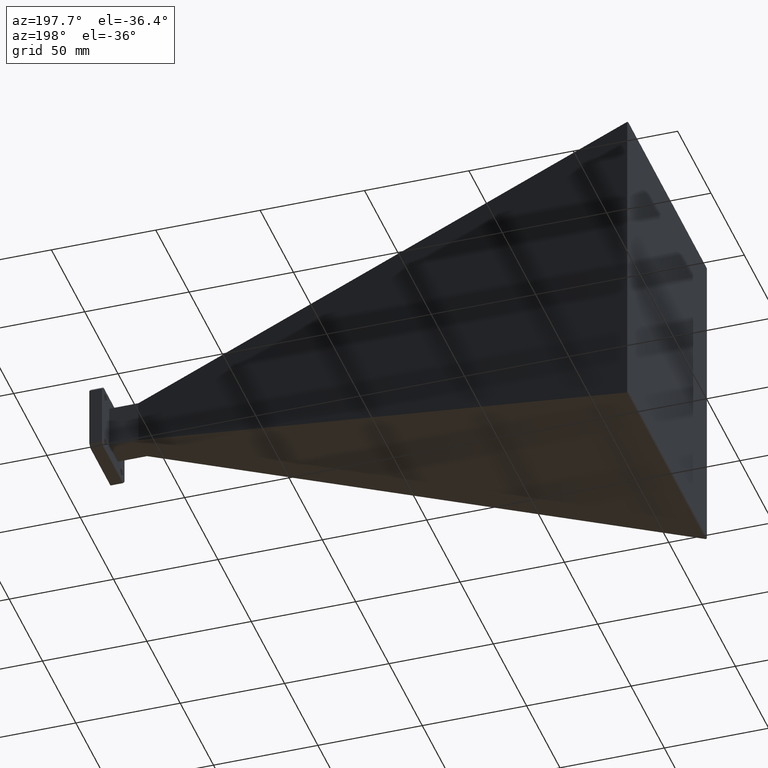
[diagram: clean part render]
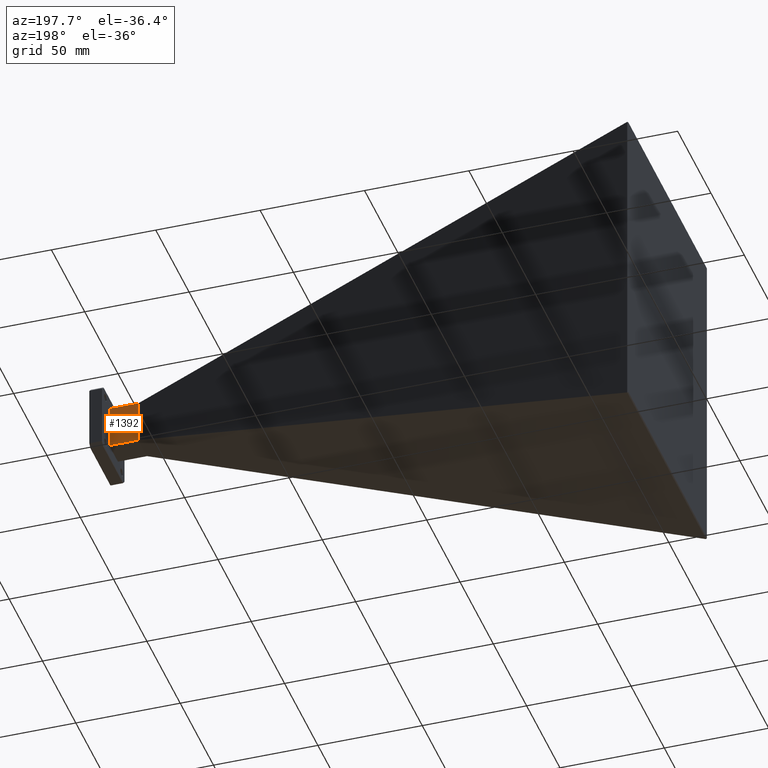
[diagram: same view with one face highlighted and labeled with its STEP entity id]
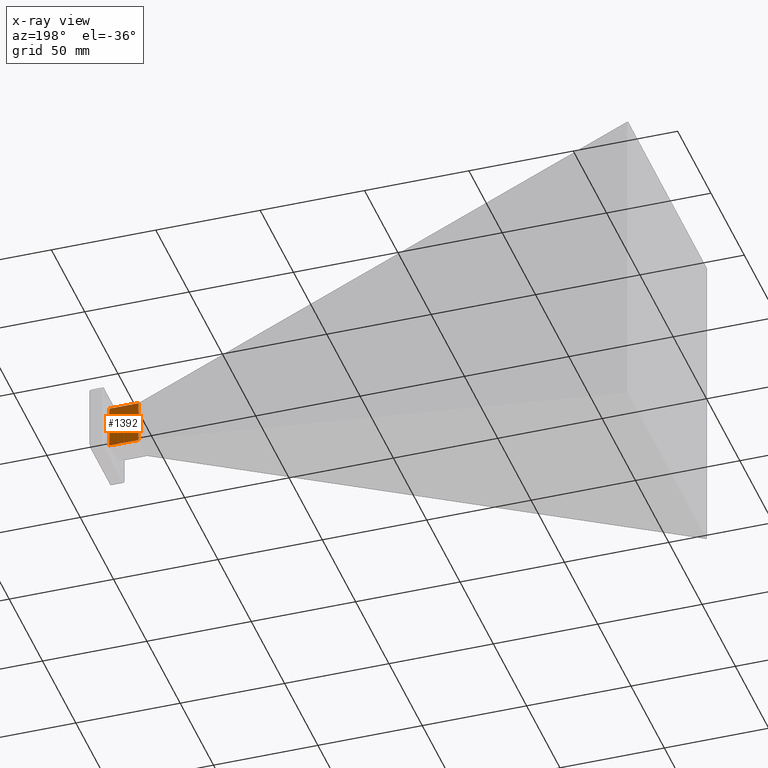
[diagram: x-ray of the same camera — body ghosted, the highlighted face saturated]
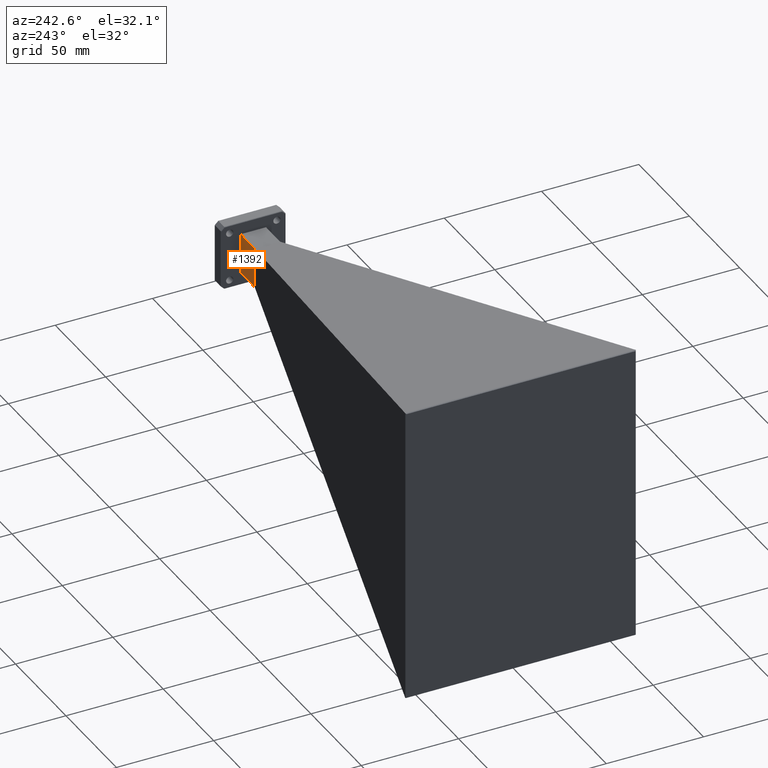
[diagram: same view with one face highlighted and labeled with its STEP entity id]
A machine part, auxiliary view. The second image highlights one B-rep face of the part: STEP entity #1392.
The next image is the same camera in x-ray: the body ghosted, the highlighted face saturated — about 0% of this face is hidden behind the body in this view.
A second angle (auxiliary view) of the same face is appended — the face is thin or edge-on in the first view.
In plain terms, the highlighted planar face has unit normal (0, -1, -0).
Its self-contained STEP definition (entity closure, byte-faithful):
#6 = ORIENTED_EDGE ( 'NONE', *, *, #1417, .F. ) ;
#102 = FACE_OUTER_BOUND ( 'NONE', #928, .T. ) ;
#109 = VECTOR ( 'NONE', #1062, 39.37007874015748100 ) ;
#117 = DIRECTION ( 'NONE',  ( 1.000000000000000000, -0.0000000000000000000, -0.0000000000000000000 ) ) ;
#121 = VERTEX_POINT ( 'NONE', #1286 ) ;
#136 = CARTESIAN_POINT ( 'NONE',  ( -0.5500000000000000400, 0.2555000000000000600, -0.4110000000000002000 ) ) ;
#178 = LINE ( 'NONE', #532, #352 ) ;
#192 = VECTOR ( 'NONE', #1068, 39.37007874015748100 ) ;
#349 = VERTEX_POINT ( 'NONE', #136 ) ;
#352 = VECTOR ( 'NONE', #1223, 39.37007874015748100 ) ;
#367 = CARTESIAN_POINT ( 'NONE',  ( -0.5500000000000000400, 0.2555000000000000000, -0.4110000000000001400 ) ) ;
#493 = CARTESIAN_POINT ( 'NONE',  ( 0.0000000000000000000, 0.2555000000000000000, -0.4110000000000001400 ) ) ;
#516 = LINE ( 'NONE', #1310, #192 ) ;
#531 = ORIENTED_EDGE ( 'NONE', *, *, #535, .T. ) ;
#532 = CARTESIAN_POINT ( 'NONE',  ( 0.0000000000000000000, 0.2555000000000000000, 0.4110000000000000900 ) ) ;
#535 = EDGE_CURVE ( 'NONE', #567, #960, #178, .T. ) ;
#567 = VERTEX_POINT ( 'NONE', #867 ) ;
#589 = VECTOR ( 'NONE', #117, 39.37007874015748100 ) ;
#769 = ORIENTED_EDGE ( 'NONE', *, *, #936, .F. ) ;
#867 = CARTESIAN_POINT ( 'NONE',  ( 0.0000000000000000000, 0.2555000000000000000, 0.4110000000000000900 ) ) ;
#928 = EDGE_LOOP ( 'NONE', ( #531, #769, #6, #1530 ) ) ;
#935 = PLANE ( 'NONE',  #1125 ) ;
#936 = EDGE_CURVE ( 'NONE', #349, #960, #1555, .T. ) ;
#960 = VERTEX_POINT ( 'NONE', #493 ) ;
#1062 = DIRECTION ( 'NONE',  ( -1.816786782790844700E-017, -8.649285477099955100E-017, -1.000000000000000000 ) ) ;
#1068 = DIRECTION ( 'NONE',  ( 1.000000000000000000, -0.0000000000000000000, -0.0000000000000000000 ) ) ;
#1125 = AXIS2_PLACEMENT_3D ( 'NONE', #1307, #1276, #1156 ) ;
#1156 = DIRECTION ( 'NONE',  ( 0.0000000000000000000, 0.0000000000000000000, -1.000000000000000000 ) ) ;
#1223 = DIRECTION ( 'NONE',  ( 0.0000000000000000000, 0.0000000000000000000, -1.000000000000000000 ) ) ;
#1276 = DIRECTION ( 'NONE',  ( 0.0000000000000000000, -1.000000000000000000, -0.0000000000000000000 ) ) ;
#1286 = CARTESIAN_POINT ( 'NONE',  ( -0.5500000000000001600, 0.2555000000000000600, 0.4109999999999999800 ) ) ;
#1307 = CARTESIAN_POINT ( 'NONE',  ( -0.5500000000000000400, 0.2555000000000000000, 0.4110000000000000900 ) ) ;
#1310 = CARTESIAN_POINT ( 'NONE',  ( -0.5500000000000000400, 0.2555000000000000000, 0.4110000000000000900 ) ) ;
#1324 = LINE ( 'NONE', #1529, #109 ) ;
#1392 = ADVANCED_FACE ( 'NONE', ( #102 ), #935, .F. ) ;
#1417 = EDGE_CURVE ( 'NONE', #121, #349, #1324, .T. ) ;
#1529 = CARTESIAN_POINT ( 'NONE',  ( -0.5499999999999999300, 0.2555000000000001200, -1.210659708864075500E-017 ) ) ;
#1530 = ORIENTED_EDGE ( 'NONE', *, *, #1563, .T. ) ;
#1555 = LINE ( 'NONE', #367, #589 ) ;
#1563 = EDGE_CURVE ( 'NONE', #121, #567, #516, .T. ) ;